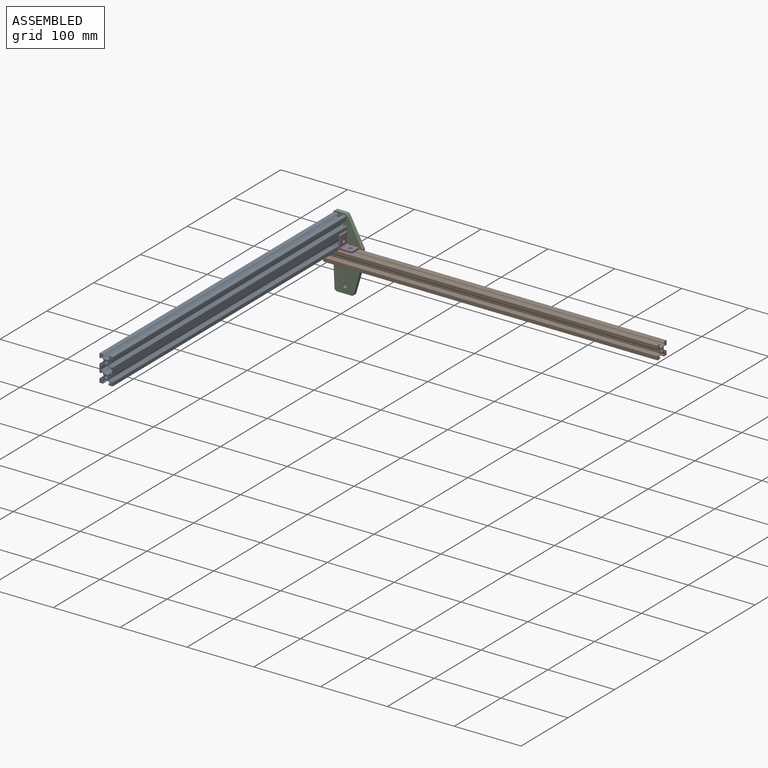
[diagram: assembled view]
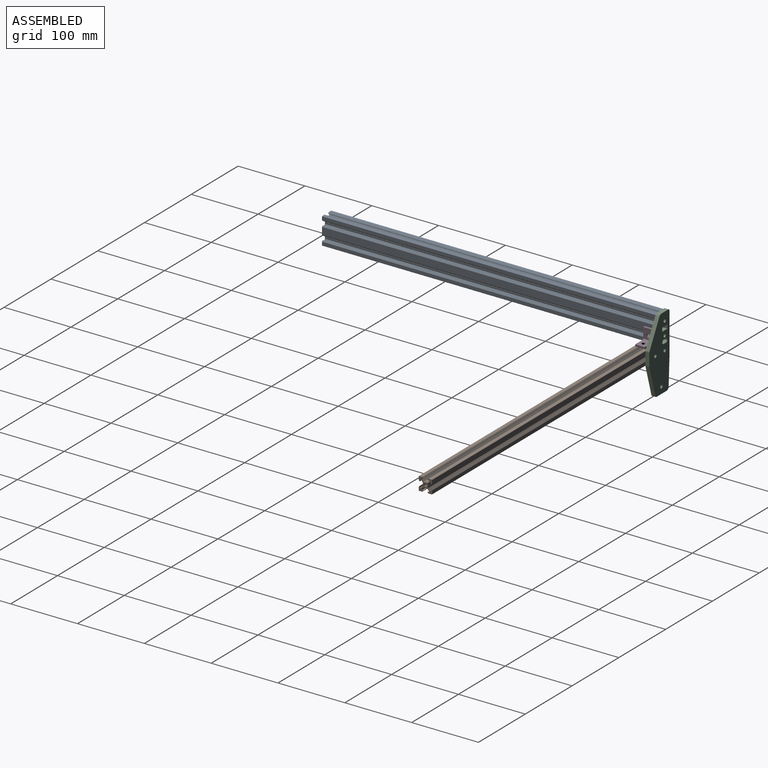
[diagram: assembled view, second angle]
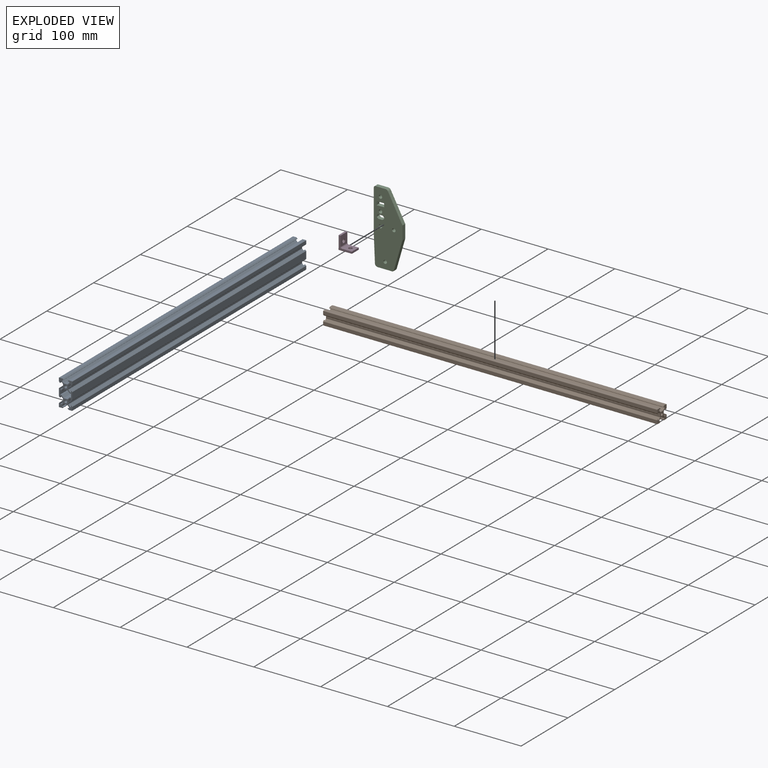
[diagram: exploded view]
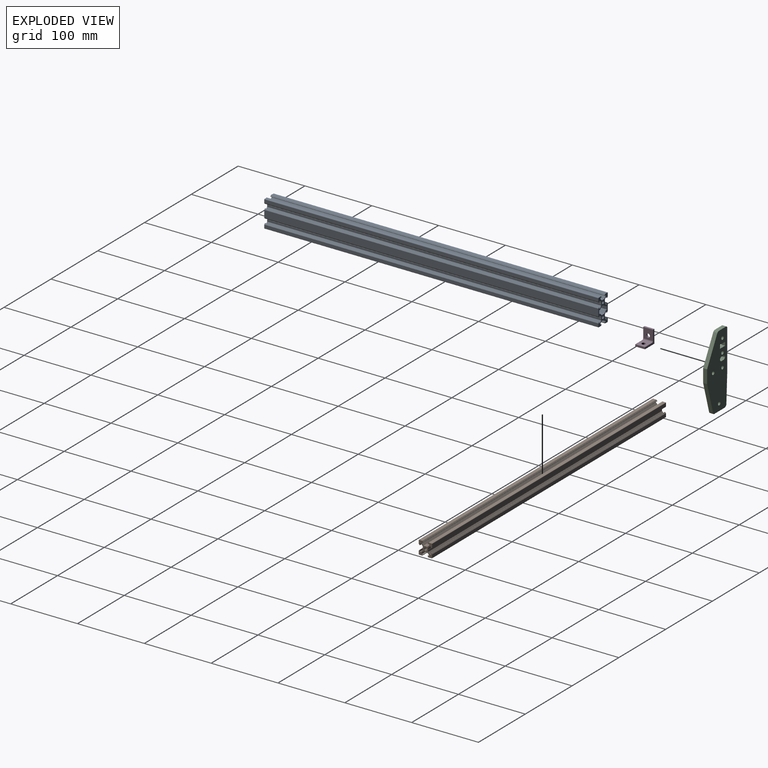
[diagram: exploded view, second angle]
ASSEMBLY  parts=4 mates=4
PART A: 114 faces, bbox 20x500x40 mm
  f0: cylinder r=2.1mm len=500mm, axis (0,1,0), area 6597.3mm2, adj f112,f113
  f1: cylinder r=2.1mm len=500mm, axis (0,1,0), area 6597.3mm2, adj f112,f113
  f2: plane 500x0.21mm, normal (0.71,0,0.71), area 148.5mm2, adj f3,f110,f112,f113
  f3: plane 500x0.21mm, normal (0.71,0,-0.71), area 148.5mm2, adj f2,f4,f112,f113
  f4: plane 500x2.63mm, normal (1,0,0), area 1314.7mm2, adj f3,f5,f112,f113
  f5: plane 500x2.66mm, normal (0.71,0,-0.71), area 1881.4mm2, adj f4,f6,f112,f113
  f6: plane 500x1.64mm, normal (0,0,-1), area 819.7mm2, adj f5,f7,f112,f113
  f7: plane 500x2.38mm, normal (-1,0,0), area 1187.5mm2, adj f6,f8,f112,f113
  f8: plane 500x0.35mm, normal (0,0,-1), area 172.5mm2, adj f7,f9,f112,f113
  f9: plane 500x1.46mm, normal (0.71,0,-0.71), area 1028.8mm2, adj f8,f10,f112,f113
  f10: plane 500x4.92mm, normal (1,0,0), area 2460mm2, adj f9,f11,f112,f113
  f11: cylinder r=0.5mm len=500mm, axis (0,1,0), area 392.7mm2, adj f10,f12,f112,f113
  f12: plane 500x4.92mm, normal (0,0,1), area 2460mm2, adj f11,f13,f112,f113
  f13: plane 500x1.46mm, normal (-0.71,0,0.71), area 1028.8mm2, adj f12,f14,f112,f113
  f14: plane 500x0.35mm, normal (-1,0,0), area 172.5mm2, adj f13,f15,f112,f113
  f15: plane 500x2.38mm, normal (0,0,-1), area 1187.5mm2, adj f14,f16,f112,f113
  f16: plane 500x1.64mm, normal (-1,0,0), area 819.7mm2, adj f15,f17,f112,f113
  f17: plane 500x2.66mm, normal (-0.71,0,0.71), area 1881.4mm2, adj f16,f18,f112,f113
  f18: plane 500x2.63mm, normal (0,0,1), area 1314.7mm2, adj f17,f19,f112,f113
  f19: plane 500x0.21mm, normal (-0.71,0,0.71), area 148.5mm2, adj f18,f20,f112,f113
  f20: plane 500x0.21mm, normal (0.71,0,0.71), area 148.5mm2, adj f19,f21,f112,f113
  f21: plane 500x2.63mm, normal (0,0,1), area 1314.7mm2, adj f20,f22,f112,f113
  f22: plane 500x2.66mm, normal (0.71,0,0.71), area 1881.4mm2, adj f21,f23,f112,f113
  f23: plane 500x1.64mm, normal (1,0,0), area 819.7mm2, adj f22,f24,f112,f113
  f24: plane 500x2.38mm, normal (0,0,-1), area 1187.5mm2, adj f23,f25,f112,f113
  f25: plane 500x0.35mm, normal (1,0,0), area 172.5mm2, adj f24,f26,f112,f113
  f26: plane 500x1.46mm, normal (0.71,0,0.71), area 1028.8mm2, adj f25,f27,f112,f113
  f27: plane 500x4.92mm, normal (0,0,1), area 2460mm2, adj f26,f28,f112,f113
  f28: cylinder r=0.5mm len=500mm, axis (0,1,0), area 392.7mm2, adj f27,f29,f112,f113
  f29: plane 500x4.92mm, normal (-1,0,0), area 2460mm2, adj f28,f30,f112,f113
  f30: plane 500x1.46mm, normal (-0.71,0,-0.71), area 1028.8mm2, adj f29,f31,f112,f113
  f31: plane 500x0.35mm, normal (0,0,-1), area 172.5mm2, adj f30,f32,f112,f113
  f32: plane 500x2.38mm, normal (1,0,0), area 1187.5mm2, adj f31,f33,f112,f113
  f33: plane 500x1.64mm, normal (0,0,-1), area 819.7mm2, adj f32,f34,f112,f113
  f34: plane 500x2.66mm, normal (-0.71,0,-0.71), area 1881.4mm2, adj f33,f35,f112,f113
  f35: plane 500x2.63mm, normal (-1,0,0), area 1314.7mm2, adj f34,f36,f112,f113
  f36: plane 500x0.21mm, normal (-0.71,0,-0.71), area 148.5mm2, adj f35,f37,f112,f113
  f37: plane 500x0.21mm, normal (-0.71,0,0.71), area 148.5mm2, adj f36,f38,f112,f113
  f38: plane 500x2.63mm, normal (-1,0,0), area 1314.7mm2, adj f37,f39,f112,f113
  f39: plane 500x2.66mm, normal (-0.71,0,0.71), area 1881.4mm2, adj f38,f40,f112,f113
  f40: plane 500x1.64mm, normal (0,0,1), area 819.7mm2, adj f39,f41,f112,f113
  f41: plane 500x2.38mm, normal (1,0,0), area 1187.5mm2, adj f40,f42,f112,f113
  f42: plane 500x0.35mm, normal (0,0,1), area 172.5mm2, adj f41,f43,f112,f113
  f43: plane 500x1.46mm, normal (-0.71,0,0.71), area 1028.8mm2, adj f42,f44,f112,f113
  f44: plane 500x10.84mm, normal (-1,0,0), area 5420mm2, adj f43,f45,f112,f113
  f45: plane 500x1.46mm, normal (-0.71,0,-0.71), area 1028.8mm2, adj f44,f46,f112,f113
  f46: plane 500x0.35mm, normal (0,0,-1), area 172.5mm2, adj f45,f47,f112,f113
  f47: plane 500x2.38mm, normal (1,0,0), area 1187.5mm2, adj f46,f48,f112,f113
  f48: plane 500x1.64mm, normal (0,0,-1), area 819.7mm2, adj f47,f49,f112,f113
  f49: plane 500x2.66mm, normal (-0.71,0,-0.71), area 1881.4mm2, adj f48,f50,f112,f113
  f50: plane 500x2.63mm, normal (-1,0,0), area 1314.7mm2, adj f49,f51,f112,f113
  f51: plane 500x0.21mm, normal (-0.71,0,-0.71), area 148.5mm2, adj f50,f52,f112,f113
  f52: plane 500x0.21mm, normal (-0.71,0,0.71), area 148.5mm2, adj f51,f53,f112,f113
  f53: plane 500x2.63mm, normal (-1,0,0), area 1314.7mm2, adj f52,f54,f112,f113
  f54: plane 500x2.66mm, normal (-0.71,0,0.71), area 1881.4mm2, adj f53,f55,f112,f113
  f55: plane 500x1.64mm, normal (0,0,1), area 819.7mm2, adj f54,f56,f112,f113
  f56: plane 500x2.38mm, normal (1,0,0), area 1187.5mm2, adj f55,f57,f112,f113
  f57: plane 500x0.35mm, normal (0,0,1), area 172.5mm2, adj f56,f58,f112,f113
  f58: plane 500x1.46mm, normal (-0.71,0,0.71), area 1028.8mm2, adj f57,f59,f112,f113
  f59: plane 500x4.92mm, normal (-1,0,0), area 2460mm2, adj f58,f60,f112,f113
  f60: cylinder r=0.5mm len=500mm, axis (0,1,0), area 392.7mm2, adj f59,f61,f112,f113
  f61: plane 500x4.92mm, normal (0,0,-1), area 2460mm2, adj f60,f62,f112,f113
  f62: plane 500x1.46mm, normal (0.71,0,-0.71), area 1028.8mm2, adj f61,f63,f112,f113
  f63: plane 500x0.35mm, normal (1,0,0), area 172.5mm2, adj f62,f64,f112,f113
  f64: plane 500x2.38mm, normal (0,0,1), area 1187.5mm2, adj f63,f65,f112,f113
  f65: plane 500x1.64mm, normal (1,0,0), area 819.7mm2, adj f64,f66,f112,f113
  f66: plane 500x2.66mm, normal (0.71,0,-0.71), area 1881.4mm2, adj f65,f67,f112,f113
  f67: plane 500x2.63mm, normal (0,0,-1), area 1314.7mm2, adj f66,f68,f112,f113
  f68: plane 500x0.21mm, normal (0.71,0,-0.71), area 148.5mm2, adj f67,f69,f112,f113
  f69: plane 500x0.21mm, normal (-0.71,0,-0.71), area 148.5mm2, adj f68,f70,f112,f113
  f70: plane 500x2.63mm, normal (0,0,-1), area 1314.7mm2, adj f69,f71,f112,f113
  f71: plane 500x2.66mm, normal (-0.71,0,-0.71), area 1881.4mm2, adj f70,f72,f112,f113
  f72: plane 500x1.64mm, normal (-1,0,0), area 819.7mm2, adj f71,f73,f112,f113
  f73: plane 500x2.38mm, normal (0,0,1), area 1187.5mm2, adj f72,f74,f112,f113
  f74: plane 500x0.35mm, normal (-1,0,0), area 172.5mm2, adj f73,f75,f112,f113
  f75: plane 500x1.46mm, normal (-0.71,0,-0.71), area 1028.8mm2, adj f74,f76,f112,f113
  f76: plane 500x4.92mm, normal (0,0,-1), area 2460mm2, adj f75,f77,f112,f113
  f77: cylinder r=0.5mm len=500mm, axis (0,1,0), area 392.7mm2, adj f76,f78,f112,f113
  f78: plane 500x4.92mm, normal (1,0,0), area 2460mm2, adj f77,f79,f112,f113
  f79: plane 500x1.46mm, normal (0.71,0,0.71), area 1028.8mm2, adj f78,f80,f112,f113
  f80: plane 500x0.35mm, normal (0,0,1), area 172.5mm2, adj f79,f81,f112,f113
  f81: plane 500x2.38mm, normal (-1,0,0), area 1187.5mm2, adj f80,f82,f112,f113
  f82: plane 500x1.64mm, normal (0,0,1), area 819.7mm2, adj f81,f83,f112,f113
  f83: plane 500x2.66mm, normal (0.71,0,0.71), area 1881.4mm2, adj f82,f84,f112,f113
  f84: plane 500x2.63mm, normal (1,0,0), area 1314.7mm2, adj f83,f85,f112,f113
  f85: plane 500x0.21mm, normal (0.71,0,0.71), area 148.5mm2, adj f84,f86,f112,f113
  f86: plane 500x0.21mm, normal (0.71,0,-0.71), area 148.5mm2, adj f85,f87,f112,f113
  f87: plane 500x2.63mm, normal (1,0,0), area 1314.7mm2, adj f86,f88,f112,f113
  f88: plane 500x2.66mm, normal (0.71,0,-0.71), area 1881.4mm2, adj f87,f89,f112,f113
  f89: plane 500x1.64mm, normal (0,0,-1), area 819.7mm2, adj f88,f90,f112,f113
  f90: plane 500x2.38mm, normal (-1,0,0), area 1187.5mm2, adj f89,f91,f112,f113
  f91: plane 500x0.35mm, normal (0,0,-1), area 172.5mm2, adj f90,f92,f112,f113
  f92: plane 500x1.46mm, normal (0.71,0,-0.71), area 1028.8mm2, adj f91,f93,f112,f113
  f93: plane 500x10.84mm, normal (1,0,0), area 5420mm2, adj f92,f94,f112,f113
  f94: plane 500x1.46mm, normal (0.71,0,0.71), area 1028.8mm2, adj f93,f95,f112,f113
  f95: plane 500x0.35mm, normal (0,0,1), area 172.5mm2, adj f94,f96,f112,f113
  f96: plane 500x2.38mm, normal (-1,0,0), area 1187.5mm2, adj f95,f97,f112,f113
  f97: plane 500x1.64mm, normal (0,0,1), area 819.7mm2, adj f96,f98,f112,f113
  f98: plane 500x2.66mm, normal (0.71,0,0.71), area 1881.4mm2, adj f97,f110,f112,f113
  f99: plane 500x1.96mm, normal (0,0,1), area 980.3mm2, adj f100,f111,f112,f113
  f100: plane 500x5.4mm, normal (1,0,0), area 2700mm2, adj f99,f101,f112,f113
  f101: plane 500x1.96mm, normal (0,0,-1), area 980.3mm2, adj f100,f102,f112,f113
  f102: plane 500x3.4mm, normal (0.71,0,-0.71), area 2404.2mm2, adj f101,f103,f112,f113
  f103: plane 500x5.68mm, normal (0,0,-1), area 2839.3mm2, adj f102,f104,f112,f113
  f104: plane 500x3.4mm, normal (-0.71,0,-0.71), area 2404.2mm2, adj f103,f105,f112,f113
  f105: plane 500x1.96mm, normal (0,0,-1), area 980.3mm2, adj f104,f106,f112,f113
  f106: plane 500x5.4mm, normal (-1,0,0), area 2700mm2, adj f105,f107,f112,f113
  f107: plane 500x1.96mm, normal (0,0,1), area 980.3mm2, adj f106,f108,f112,f113
  f108: plane 500x3.4mm, normal (-0.71,0,0.71), area 2404.2mm2, adj f107,f109,f112,f113
  f109: plane 500x5.68mm, normal (0,0,1), area 2839.3mm2, adj f108,f111,f112,f113
  f110: plane 500x2.63mm, normal (1,0,0), area 1314.7mm2, adj f2,f98,f112,f113
  f111: plane 500x3.4mm, normal (0.71,0,0.71), area 2404.2mm2, adj f99,f109,f112,f113
  f112: plane 40x20mm, normal (0,-1,0), area 300mm2, adj f0,f1,f2,f3,f4,f5,f6,f7
  f113: plane 40x20mm, normal (0,1,0), area 300mm2, adj f0,f1,f2,f3,f4,f5,f6,f7
PART B: 71 faces, bbox 20x500x20 mm
  f0: cylinder r=2.1mm len=500mm, axis (0,1,0), area 6597.3mm2, adj f69,f70
  f1: plane 500x0.21mm, normal (0.71,0,0.71), area 148.5mm2, adj f2,f68,f69,f70
  f2: plane 500x0.21mm, normal (0.71,0,-0.71), area 148.5mm2, adj f1,f3,f69,f70
  f3: plane 500x2.63mm, normal (1,0,0), area 1314.7mm2, adj f2,f4,f69,f70
  f4: plane 500x2.66mm, normal (0.71,0,-0.71), area 1881.4mm2, adj f3,f5,f69,f70
  f5: plane 500x1.64mm, normal (0,0,-1), area 819.7mm2, adj f4,f6,f69,f70
  f6: plane 500x2.38mm, normal (-1,0,0), area 1187.5mm2, adj f5,f7,f69,f70
  f7: plane 500x0.35mm, normal (0,0,-1), area 172.5mm2, adj f6,f8,f69,f70
  f8: plane 500x1.46mm, normal (0.71,0,-0.71), area 1028.8mm2, adj f7,f9,f69,f70
  f9: plane 500x4.92mm, normal (1,0,0), area 2460mm2, adj f8,f10,f69,f70
  f10: cylinder r=0.5mm len=500mm, axis (0,1,0), area 392.7mm2, adj f9,f11,f69,f70
  f11: plane 500x4.92mm, normal (0,0,1), area 2460mm2, adj f10,f12,f69,f70
  f12: plane 500x1.46mm, normal (-0.71,0,0.71), area 1028.8mm2, adj f11,f13,f69,f70
  f13: plane 500x0.35mm, normal (-1,0,0), area 172.5mm2, adj f12,f14,f69,f70
  f14: plane 500x2.38mm, normal (0,0,-1), area 1187.5mm2, adj f13,f15,f69,f70
  f15: plane 500x1.64mm, normal (-1,0,0), area 819.7mm2, adj f14,f16,f69,f70
  f16: plane 500x2.66mm, normal (-0.71,0,0.71), area 1881.4mm2, adj f15,f17,f69,f70
  f17: plane 500x2.63mm, normal (0,0,1), area 1314.7mm2, adj f16,f18,f69,f70
  f18: plane 500x0.21mm, normal (-0.71,0,0.71), area 148.5mm2, adj f17,f19,f69,f70
  f19: plane 500x0.21mm, normal (0.71,0,0.71), area 148.5mm2, adj f18,f20,f69,f70
  f20: plane 500x2.63mm, normal (0,0,1), area 1314.7mm2, adj f19,f21,f69,f70
  f21: plane 500x2.66mm, normal (0.71,0,0.71), area 1881.4mm2, adj f20,f22,f69,f70
  f22: plane 500x1.64mm, normal (1,0,0), area 819.7mm2, adj f21,f23,f69,f70
  f23: plane 500x2.38mm, normal (0,0,-1), area 1187.5mm2, adj f22,f24,f69,f70
  f24: plane 500x0.35mm, normal (1,0,0), area 172.5mm2, adj f23,f25,f69,f70
  f25: plane 500x1.46mm, normal (0.71,0,0.71), area 1028.8mm2, adj f24,f26,f69,f70
  f26: plane 500x4.92mm, normal (0,0,1), area 2460mm2, adj f25,f27,f69,f70
  f27: cylinder r=0.5mm len=500mm, axis (0,1,0), area 392.7mm2, adj f26,f28,f69,f70
  f28: plane 500x4.92mm, normal (-1,0,0), area 2460mm2, adj f27,f29,f69,f70
  f29: plane 500x1.46mm, normal (-0.71,0,-0.71), area 1028.8mm2, adj f28,f30,f69,f70
  f30: plane 500x0.35mm, normal (0,0,-1), area 172.5mm2, adj f29,f31,f69,f70
  f31: plane 500x2.38mm, normal (1,0,0), area 1187.5mm2, adj f30,f32,f69,f70
  f32: plane 500x1.64mm, normal (0,0,-1), area 819.7mm2, adj f31,f33,f69,f70
  f33: plane 500x2.66mm, normal (-0.71,0,-0.71), area 1881.4mm2, adj f32,f34,f69,f70
  f34: plane 500x2.63mm, normal (-1,0,0), area 1314.7mm2, adj f33,f35,f69,f70
  f35: plane 500x0.21mm, normal (-0.71,0,-0.71), area 148.5mm2, adj f34,f36,f69,f70
  f36: plane 500x0.21mm, normal (-0.71,0,0.71), area 148.5mm2, adj f35,f37,f69,f70
  f37: plane 500x2.63mm, normal (-1,0,0), area 1314.7mm2, adj f36,f38,f69,f70
  f38: plane 500x2.66mm, normal (-0.71,0,0.71), area 1881.4mm2, adj f37,f39,f69,f70
  f39: plane 500x1.64mm, normal (0,0,1), area 819.7mm2, adj f38,f40,f69,f70
  f40: plane 500x2.38mm, normal (1,0,0), area 1187.5mm2, adj f39,f41,f69,f70
  f41: plane 500x0.35mm, normal (0,0,1), area 172.5mm2, adj f40,f42,f69,f70
  f42: plane 500x1.46mm, normal (-0.71,0,0.71), area 1028.8mm2, adj f41,f43,f69,f70
  f43: plane 500x4.92mm, normal (-1,0,0), area 2460mm2, adj f42,f44,f69,f70
  f44: cylinder r=0.5mm len=500mm, axis (0,1,0), area 392.7mm2, adj f43,f45,f69,f70
  f45: plane 500x4.92mm, normal (0,0,-1), area 2460mm2, adj f44,f46,f69,f70
  f46: plane 500x1.46mm, normal (0.71,0,-0.71), area 1028.8mm2, adj f45,f47,f69,f70
  f47: plane 500x0.35mm, normal (1,0,0), area 172.5mm2, adj f46,f48,f69,f70
  f48: plane 500x2.38mm, normal (0,0,1), area 1187.5mm2, adj f47,f49,f69,f70
  f49: plane 500x1.64mm, normal (1,0,0), area 819.7mm2, adj f48,f50,f69,f70
  f50: plane 500x2.66mm, normal (0.71,0,-0.71), area 1881.4mm2, adj f49,f51,f69,f70
  f51: plane 500x2.63mm, normal (0,0,-1), area 1314.7mm2, adj f50,f52,f69,f70
  f52: plane 500x0.21mm, normal (0.71,0,-0.71), area 148.5mm2, adj f51,f53,f69,f70
  f53: plane 500x0.21mm, normal (-0.71,0,-0.71), area 148.5mm2, adj f52,f54,f69,f70
  f54: plane 500x2.63mm, normal (0,0,-1), area 1314.7mm2, adj f53,f55,f69,f70
  f55: plane 500x2.66mm, normal (-0.71,0,-0.71), area 1881.4mm2, adj f54,f56,f69,f70
  f56: plane 500x1.64mm, normal (-1,0,0), area 819.7mm2, adj f55,f57,f69,f70
  f57: plane 500x2.38mm, normal (0,0,1), area 1187.5mm2, adj f56,f58,f69,f70
  f58: plane 500x0.35mm, normal (-1,0,0), area 172.5mm2, adj f57,f59,f69,f70
  f59: plane 500x1.46mm, normal (-0.71,0,-0.71), area 1028.8mm2, adj f58,f60,f69,f70
  f60: plane 500x4.92mm, normal (0,0,-1), area 2460mm2, adj f59,f61,f69,f70
  f61: cylinder r=0.5mm len=500mm, axis (0,1,0), area 392.7mm2, adj f60,f62,f69,f70
  f62: plane 500x4.92mm, normal (1,0,0), area 2460mm2, adj f61,f63,f69,f70
  f63: plane 500x1.46mm, normal (0.71,0,0.71), area 1028.8mm2, adj f62,f64,f69,f70
  f64: plane 500x0.35mm, normal (0,0,1), area 172.5mm2, adj f63,f65,f69,f70
  f65: plane 500x2.38mm, normal (-1,0,0), area 1187.5mm2, adj f64,f66,f69,f70
  f66: plane 500x1.64mm, normal (0,0,1), area 819.7mm2, adj f65,f67,f69,f70
  f67: plane 500x2.66mm, normal (0.71,0,0.71), area 1881.4mm2, adj f66,f68,f69,f70
  f68: plane 500x2.63mm, normal (1,0,0), area 1314.7mm2, adj f1,f67,f69,f70
  f69: plane 20x20mm, normal (0,-1,0), area 171.4mm2, adj f0,f1,f2,f3,f4,f5,f6,f7
  f70: plane 20x20mm, normal (0,1,0), area 171.4mm2, adj f0,f1,f2,f3,f4,f5,f6,f7
PART C: 184 faces, bbox 43x6x108.7 mm
  f0: plane 6x5.4mm, normal (1,0,0), area 32.4mm2, adj f1,f181,f182,f183
  f1: plane 11x6mm, normal (0,0,-1), area 66mm2, adj f0,f2,f182,f183
  f2: plane 6x5.4mm, normal (-1,0,0), area 32.4mm2, adj f1,f181,f182,f183
  f3: plane 7.01x6mm, normal (0,0,-1), area 42.1mm2, adj f4,f174,f182,f183
  f4: plane 6x2mm, normal (-0.71,0,-0.71), area 16.9mm2, adj f3,f5,f182,f183
  f5: plane 6x1.98mm, normal (-1,0,0), area 11.9mm2, adj f4,f6,f182,f183
  f6: plane 6x2.38mm, normal (-0.64,0,0.76), area 18.6mm2, adj f5,f7,f182,f183
  f7: plane 6.25x6mm, normal (0,0,1), area 37.5mm2, adj f6,f8,f182,f183
  f8: plane 6x2.38mm, normal (0.64,0,0.76), area 18.6mm2, adj f7,f9,f182,f183
  f9: plane 6x1.98mm, normal (1,0,0), area 11.9mm2, adj f8,f174,f182,f183
  f10: plane 6x0.67mm, normal (0.13,0,0.99), area 4.1mm2, adj f11,f175,f182,f183
  f11: plane 6x0.63mm, normal (0.38,0,0.92), area 4.1mm2, adj f10,f12,f182,f183
  f12: plane 6x0.54mm, normal (0.61,0,0.79), area 4.1mm2, adj f11,f13,f182,f183
  f13: plane 6x0.54mm, normal (0.79,0,0.61), area 4.1mm2, adj f12,f14,f182,f183
  f14: plane 6x0.63mm, normal (0.92,0,0.38), area 4.1mm2, adj f13,f15,f182,f183
  f15: plane 6x0.67mm, normal (0.99,0,0.13), area 4.1mm2, adj f14,f16,f182,f183
  f16: plane 6x0.67mm, normal (0.99,0,-0.13), area 4.1mm2, adj f15,f17,f182,f183
  f17: plane 6x0.63mm, normal (0.92,0,-0.38), area 4.1mm2, adj f16,f18,f182,f183
  f18: plane 6x0.54mm, normal (0.79,0,-0.61), area 4.1mm2, adj f17,f19,f182,f183
  f19: plane 6x0.54mm, normal (0.61,0,-0.79), area 4.1mm2, adj f18,f20,f182,f183
  f20: plane 6x0.63mm, normal (0.38,0,-0.92), area 4.1mm2, adj f19,f21,f182,f183
  f21: plane 6x0.67mm, normal (0.13,0,-0.99), area 4.1mm2, adj f20,f22,f182,f183
  f22: plane 6x0.67mm, normal (-0.13,0,-0.99), area 4.1mm2, adj f21,f23,f182,f183
  f23: plane 6x0.63mm, normal (-0.38,0,-0.92), area 4.1mm2, adj f22,f24,f182,f183
  f24: plane 6x0.54mm, normal (-0.61,0,-0.79), area 4.1mm2, adj f23,f25,f182,f183
  f25: plane 6x0.54mm, normal (-0.79,0,-0.61), area 4.1mm2, adj f24,f26,f182,f183
  f26: plane 6x0.63mm, normal (-0.92,0,-0.38), area 4.1mm2, adj f25,f27,f182,f183
  f27: plane 6x0.67mm, normal (-0.99,0,-0.13), area 4.1mm2, adj f26,f28,f182,f183
  f28: plane 6x0.67mm, normal (-0.99,0,0.13), area 4.1mm2, adj f27,f29,f182,f183
  f29: plane 6x0.63mm, normal (-0.92,0,0.38), area 4.1mm2, adj f28,f30,f182,f183
  f30: plane 6x0.54mm, normal (-0.79,0,0.61), area 4.1mm2, adj f29,f31,f182,f183
  f31: plane 6x0.54mm, normal (-0.61,0,0.79), area 4.1mm2, adj f30,f32,f182,f183
  f32: plane 6x0.63mm, normal (-0.38,0,0.92), area 4.1mm2, adj f31,f175,f182,f183
  f33: plane 6x0.54mm, normal (-0.61,0,-0.79), area 4.1mm2, adj f34,f176,f182,f183
  f34: plane 6x0.54mm, normal (-0.79,0,-0.61), area 4.1mm2, adj f33,f35,f182,f183
  f35: plane 6x0.63mm, normal (-0.92,0,-0.38), area 4.1mm2, adj f34,f36,f182,f183
  f36: plane 6x0.67mm, normal (-0.99,0,-0.13), area 4.1mm2, adj f35,f37,f182,f183
  f37: plane 6x0.67mm, normal (-0.99,0,0.13), area 4.1mm2, adj f36,f38,f182,f183
  f38: plane 6x0.63mm, normal (-0.92,0,0.38), area 4.1mm2, adj f37,f39,f182,f183
  f39: plane 6x0.54mm, normal (-0.79,0,0.61), area 4.1mm2, adj f38,f40,f182,f183
  f40: plane 6x0.54mm, normal (-0.61,0,0.79), area 4.1mm2, adj f39,f41,f182,f183
  f41: plane 6x0.63mm, normal (-0.38,0,0.92), area 4.1mm2, adj f40,f42,f182,f183
  f42: plane 6x0.67mm, normal (-0.13,0,0.99), area 4.1mm2, adj f41,f43,f182,f183
  f43: plane 6x0.67mm, normal (0.13,0,0.99), area 4.1mm2, adj f42,f44,f182,f183
  f44: plane 6x0.63mm, normal (0.38,0,0.92), area 4.1mm2, adj f43,f45,f182,f183
  f45: plane 6x0.54mm, normal (0.61,0,0.79), area 4.1mm2, adj f44,f46,f182,f183
  f46: plane 6x0.54mm, normal (0.79,0,0.61), area 4.1mm2, adj f45,f47,f182,f183
  f47: plane 6x0.63mm, normal (0.92,0,0.38), area 4.1mm2, adj f46,f48,f182,f183
  f48: plane 6x0.67mm, normal (0.99,0,0.13), area 4.1mm2, adj f47,f49,f182,f183
  f49: plane 6x0.67mm, normal (0.99,0,-0.13), area 4.1mm2, adj f48,f50,f182,f183
  f50: plane 6x0.63mm, normal (0.92,0,-0.38), area 4.1mm2, adj f49,f51,f182,f183
  f51: plane 6x0.54mm, normal (0.79,0,-0.61), area 4.1mm2, adj f50,f52,f182,f183
  f52: plane 6x0.54mm, normal (0.61,0,-0.79), area 4.1mm2, adj f51,f53,f182,f183
  f53: plane 6x0.63mm, normal (0.38,0,-0.92), area 4.1mm2, adj f52,f54,f182,f183
  f54: plane 6x0.67mm, normal (0.13,0,-0.99), area 4.1mm2, adj f53,f55,f182,f183
  f55: plane 6x0.67mm, normal (-0.13,0,-0.99), area 4.1mm2, adj f54,f176,f182,f183
  f56: plane 6x0.54mm, normal (-0.61,0,0.79), area 4.1mm2, adj f57,f177,f182,f183
  f57: plane 6x0.63mm, normal (-0.38,0,0.92), area 4.1mm2, adj f56,f58,f182,f183
  f58: plane 6x0.67mm, normal (-0.13,0,0.99), area 4.1mm2, adj f57,f59,f182,f183
  f59: plane 6x0.67mm, normal (0.13,0,0.99), area 4.1mm2, adj f58,f60,f182,f183
  f60: plane 6x0.63mm, normal (0.38,0,0.92), area 4.1mm2, adj f59,f61,f182,f183
  f61: plane 6x0.54mm, normal (0.61,0,0.79), area 4.1mm2, adj f60,f62,f182,f183
  f62: plane 6x0.54mm, normal (0.79,0,0.61), area 4.1mm2, adj f61,f63,f182,f183
  f63: plane 6x0.63mm, normal (0.92,0,0.38), area 4.1mm2, adj f62,f64,f182,f183
  f64: plane 6x0.67mm, normal (0.99,0,0.13), area 4.1mm2, adj f63,f65,f182,f183
  f65: plane 6x0.67mm, normal (0.99,0,-0.13), area 4.1mm2, adj f64,f66,f182,f183
  f66: plane 6x0.63mm, normal (0.92,0,-0.38), area 4.1mm2, adj f65,f67,f182,f183
  f67: plane 6x0.54mm, normal (0.79,0,-0.61), area 4.1mm2, adj f66,f68,f182,f183
  f68: plane 6x0.54mm, normal (0.61,0,-0.79), area 4.1mm2, adj f67,f69,f182,f183
  f69: plane 6x0.63mm, normal (0.38,0,-0.92), area 4.1mm2, adj f68,f70,f182,f183
  f70: plane 6x0.67mm, normal (0.13,0,-0.99), area 4.1mm2, adj f69,f71,f182,f183
  f71: plane 6x0.67mm, normal (-0.13,0,-0.99), area 4.1mm2, adj f70,f72,f182,f183
  f72: plane 6x0.63mm, normal (-0.38,0,-0.92), area 4.1mm2, adj f71,f73,f182,f183
  f73: plane 6x0.54mm, normal (-0.61,0,-0.79), area 4.1mm2, adj f72,f74,f182,f183
  f74: plane 6x0.54mm, normal (-0.79,0,-0.61), area 4.1mm2, adj f73,f75,f182,f183
  f75: plane 6x0.63mm, normal (-0.92,0,-0.38), area 4.1mm2, adj f74,f76,f182,f183
  f76: plane 6x0.67mm, normal (-0.99,0,-0.13), area 4.1mm2, adj f75,f77,f182,f183
  f77: plane 6x0.67mm, normal (-0.99,0,0.13), area 4.1mm2, adj f76,f78,f182,f183
  f78: plane 6x0.63mm, normal (-0.92,0,0.38), area 4.1mm2, adj f77,f177,f182,f183
  f79: plane 6x0.63mm, normal (-0.92,0,-0.38), area 4.1mm2, adj f80,f178,f182,f183
  f80: plane 6x0.67mm, normal (-0.99,0,-0.13), area 4.1mm2, adj f79,f81,f182,f183
  f81: plane 6x0.67mm, normal (-0.99,0,0.13), area 4.1mm2, adj f80,f82,f182,f183
  f82: plane 6x0.63mm, normal (-0.92,0,0.38), area 4.1mm2, adj f81,f83,f182,f183
  f83: plane 6x0.54mm, normal (-0.79,0,0.61), area 4.1mm2, adj f82,f84,f182,f183
  f84: plane 6x0.54mm, normal (-0.61,0,0.79), area 4.1mm2, adj f83,f85,f182,f183
  f85: plane 6x0.63mm, normal (-0.38,0,0.92), area 4.1mm2, adj f84,f86,f182,f183
  f86: plane 6x0.67mm, normal (-0.13,0,0.99), area 4.1mm2, adj f85,f87,f182,f183
  f87: plane 6x0.67mm, normal (0.13,0,0.99), area 4.1mm2, adj f86,f88,f182,f183
  f88: plane 6x0.63mm, normal (0.38,0,0.92), area 4.1mm2, adj f87,f89,f182,f183
  f89: plane 6x0.54mm, normal (0.61,0,0.79), area 4.1mm2, adj f88,f90,f182,f183
  f90: plane 6x0.54mm, normal (0.79,0,0.61), area 4.1mm2, adj f89,f91,f182,f183
  f91: plane 6x0.63mm, normal (0.92,0,0.38), area 4.1mm2, adj f90,f92,f182,f183
  f92: plane 6x0.67mm, normal (0.99,0,0.13), area 4.1mm2, adj f91,f93,f182,f183
  f93: plane 6x0.67mm, normal (0.99,0,-0.13), area 4.1mm2, adj f92,f94,f182,f183
  f94: plane 6x0.63mm, normal (0.92,0,-0.38), area 4.1mm2, adj f93,f95,f182,f183
  f95: plane 6x0.54mm, normal (0.79,0,-0.61), area 4.1mm2, adj f94,f96,f182,f183
  f96: plane 6x0.54mm, normal (0.61,0,-0.79), area 4.1mm2, adj f95,f97,f182,f183
  f97: plane 6x0.63mm, normal (0.38,0,-0.92), area 4.1mm2, adj f96,f98,f182,f183
  f98: plane 6x0.67mm, normal (0.13,0,-0.99), area 4.1mm2, adj f97,f99,f182,f183
  f99: plane 6x0.67mm, normal (-0.13,0,-0.99), area 4.1mm2, adj f98,f100,f182,f183
  f100: plane 6x0.63mm, normal (-0.38,0,-0.92), area 4.1mm2, adj f99,f101,f182,f183
  f101: plane 6x0.54mm, normal (-0.61,0,-0.79), area 4.1mm2, adj f100,f178,f182,f183
  f102: plane 6x0.63mm, normal (-0.92,0,-0.38), area 4.1mm2, adj f103,f179,f182,f183
  f103: plane 6x0.67mm, normal (-0.99,0,-0.13), area 4.1mm2, adj f102,f104,f182,f183
  f104: plane 6x0.67mm, normal (-0.99,0,0.13), area 4.1mm2, adj f103,f105,f182,f183
  f105: plane 6x0.63mm, normal (-0.92,0,0.38), area 4.1mm2, adj f104,f106,f182,f183
  f106: plane 6x0.54mm, normal (-0.79,0,0.61), area 4.1mm2, adj f105,f107,f182,f183
  f107: plane 6x0.54mm, normal (-0.61,0,0.79), area 4.1mm2, adj f106,f108,f182,f183
  f108: plane 6x0.63mm, normal (-0.38,0,0.92), area 4.1mm2, adj f107,f109,f182,f183
  f109: plane 6x0.67mm, normal (-0.13,0,0.99), area 4.1mm2, adj f108,f110,f182,f183
  f110: plane 6x0.67mm, normal (0.13,0,0.99), area 4.1mm2, adj f109,f111,f182,f183
  f111: plane 6x0.63mm, normal (0.38,0,0.92), area 4.1mm2, adj f110,f112,f182,f183
  f112: plane 6x0.54mm, normal (0.61,0,0.79), area 4.1mm2, adj f111,f113,f182,f183
  f113: plane 6x0.54mm, normal (0.79,0,0.61), area 4.1mm2, adj f112,f114,f182,f183
  f114: plane 6x0.63mm, normal (0.92,0,0.38), area 4.1mm2, adj f113,f115,f182,f183
  f115: plane 6x0.67mm, normal (0.99,0,0.13), area 4.1mm2, adj f114,f116,f182,f183
  f116: plane 6x0.67mm, normal (0.99,0,-0.13), area 4.1mm2, adj f115,f117,f182,f183
  f117: plane 6x0.63mm, normal (0.92,0,-0.38), area 4.1mm2, adj f116,f118,f182,f183
  f118: plane 6x0.54mm, normal (0.79,0,-0.61), area 4.1mm2, adj f117,f119,f182,f183
  f119: plane 6x0.54mm, normal (0.61,0,-0.79), area 4.1mm2, adj f118,f120,f182,f183
  f120: plane 6x0.63mm, normal (0.38,0,-0.92), area 4.1mm2, adj f119,f121,f182,f183
  f121: plane 6x0.67mm, normal (0.13,0,-0.99), area 4.1mm2, adj f120,f122,f182,f183
  f122: plane 6x0.67mm, normal (-0.13,0,-0.99), area 4.1mm2, adj f121,f123,f182,f183
  f123: plane 6x0.63mm, normal (-0.38,0,-0.92), area 4.1mm2, adj f122,f124,f182,f183
  f124: plane 6x0.54mm, normal (-0.61,0,-0.79), area 4.1mm2, adj f123,f179,f182,f183
  f125: plane 6x0.18mm, normal (-0.95,0,0.32), area 1.1mm2, adj f126,f180,f182,f183
  f126: plane 6x0.77mm, normal (-0.96,0,0.27), area 4.8mm2, adj f125,f127,f182,f183
  f127: plane 6x0.35mm, normal (-1,0,0.06), area 2.1mm2, adj f126,f128,f182,f183
  f128: plane 59.63x6mm, normal (-1,0,0), area 357.8mm2, adj f127,f129,f182,f183
  f129: plane 43.59x6mm, normal (-1,0,-0.04), area 261.8mm2, adj f128,f130,f182,f183
  f130: plane 6x0.74mm, normal (-0.8,0,-0.6), area 5.5mm2, adj f129,f131,f182,f183
  f131: plane 6x0.33mm, normal (-0.72,0,-0.7), area 2.8mm2, adj f130,f132,f182,f183
  f132: plane 6x0.35mm, normal (-0.66,0,-0.75), area 2.8mm2, adj f131,f133,f182,f183
  f133: plane 6x0.37mm, normal (-0.59,0,-0.81), area 2.8mm2, adj f132,f134,f182,f183
  f134: plane 6x0.39mm, normal (-0.52,0,-0.85), area 2.8mm2, adj f133,f135,f182,f183
  f135: plane 6x0.41mm, normal (-0.45,0,-0.89), area 2.8mm2, adj f134,f136,f182,f183
  f136: plane 6x0.43mm, normal (-0.37,0,-0.93), area 2.8mm2, adj f135,f137,f182,f183
  f137: plane 6x0.44mm, normal (-0.29,0,-0.96), area 2.8mm2, adj f136,f138,f182,f183
  f138: plane 6x0.45mm, normal (-0.21,0,-0.98), area 2.8mm2, adj f137,f139,f182,f183
  f139: plane 6x0.92mm, normal (-0.08,0,-1), area 5.5mm2, adj f138,f140,f182,f183
  f140: plane 21.07x6mm, normal (0,0,-1), area 126.4mm2, adj f139,f141,f182,f183
  f141: plane 6x0.65mm, normal (0.12,0,-0.99), area 3.9mm2, adj f140,f142,f182,f183
  f142: plane 6x0.31mm, normal (0.3,0,-0.95), area 2mm2, adj f141,f143,f182,f183
  f143: plane 6x0.3mm, normal (0.41,0,-0.91), area 2mm2, adj f142,f144,f182,f183
  f144: plane 6x0.28mm, normal (0.52,0,-0.86), area 2mm2, adj f143,f145,f182,f183
  f145: plane 6x0.26mm, normal (0.62,0,-0.79), area 2mm2, adj f144,f146,f182,f183
  f146: plane 6x0.23mm, normal (0.71,0,-0.71), area 2mm2, adj f145,f147,f182,f183
  f147: plane 6x0.26mm, normal (0.79,0,-0.62), area 2mm2, adj f146,f148,f182,f183
  f148: plane 6x0.28mm, normal (0.85,0,-0.52), area 2mm2, adj f147,f149,f182,f183
  f149: plane 6x0.3mm, normal (0.91,0,-0.41), area 2mm2, adj f148,f150,f182,f183
  f150: plane 6x0.63mm, normal (0.97,0,-0.24), area 3.9mm2, adj f149,f151,f182,f183
  f151: plane 43.79x12.7mm, normal (0.96,0,-0.28), area 273.6mm2, adj f150,f152,f182,f183
  f152: plane 20x6mm, normal (1,0,0), area 120mm2, adj f151,f153,f182,f183
  f153: plane 40.19x21.57mm, normal (0.88,0,0.47), area 273.7mm2, adj f152,f154,f182,f183
  f154: plane 6x0.34mm, normal (0.82,0,0.57), area 2.5mm2, adj f153,f155,f182,f183
  f155: plane 6x0.32mm, normal (0.77,0,0.63), area 2.5mm2, adj f154,f156,f182,f183
  f156: plane 6x0.3mm, normal (0.72,0,0.7), area 2.5mm2, adj f155,f157,f182,f183
  f157: plane 6x0.31mm, normal (0.66,0,0.75), area 2.5mm2, adj f156,f158,f182,f183
  f158: plane 6x0.33mm, normal (0.59,0,0.81), area 2.5mm2, adj f157,f159,f182,f183
  f159: plane 6x0.35mm, normal (0.52,0,0.85), area 2.5mm2, adj f158,f160,f182,f183
  f160: plane 6x0.37mm, normal (0.45,0,0.89), area 2.5mm2, adj f159,f161,f182,f183
  f161: plane 6x0.38mm, normal (0.37,0,0.93), area 2.5mm2, adj f160,f162,f182,f183
  f162: plane 6x0.39mm, normal (0.29,0,0.96), area 2.5mm2, adj f161,f163,f182,f183
  f163: plane 6x0.4mm, normal (0.21,0,0.98), area 2.5mm2, adj f162,f164,f182,f183
  f164: plane 6x0.41mm, normal (0.13,0,0.99), area 2.5mm2, adj f163,f165,f182,f183
  f165: plane 6x0.41mm, normal (0.04,0,1), area 2.5mm2, adj f164,f166,f182,f183
  f166: plane 14.67x6mm, normal (0,0,1), area 88mm2, adj f165,f167,f182,f183
  f167: plane 6x0.35mm, normal (-0.15,0,0.99), area 2.1mm2, adj f166,f168,f182,f183
  f168: plane 6x0.34mm, normal (-0.27,0,0.96), area 2.1mm2, adj f167,f169,f182,f183
  f169: plane 6x0.33mm, normal (-0.38,0,0.92), area 2.1mm2, adj f168,f170,f182,f183
  f170: plane 6x0.31mm, normal (-0.5,0,0.87), area 2.1mm2, adj f169,f171,f182,f183
  f171: plane 6x0.28mm, normal (-0.6,0,0.8), area 2.1mm2, adj f170,f172,f182,f183
  f172: plane 6x0.26mm, normal (-0.69,0,0.72), area 2.1mm2, adj f171,f173,f182,f183
  f173: plane 6x0.28mm, normal (-0.78,0,0.63), area 2.1mm2, adj f172,f180,f182,f183
  f174: plane 6x2mm, normal (0.71,0,-0.71), area 16.9mm2, adj f3,f9,f182,f183
  f175: plane 6x0.67mm, normal (-0.13,0,0.99), area 4.1mm2, adj f10,f32,f182,f183
  f176: plane 6x0.63mm, normal (-0.38,0,-0.92), area 4.1mm2, adj f33,f55,f182,f183
  f177: plane 6x0.54mm, normal (-0.79,0,0.61), area 4.1mm2, adj f56,f78,f182,f183
  f178: plane 6x0.54mm, normal (-0.79,0,-0.61), area 4.1mm2, adj f79,f101,f182,f183
  f179: plane 6x0.54mm, normal (-0.79,0,-0.61), area 4.1mm2, adj f102,f124,f182,f183
  f180: plane 6x0.36mm, normal (-0.84,0,0.55), area 2.6mm2, adj f125,f173,f182,f183
  f181: plane 11x6mm, normal (0,0,1), area 66mm2, adj f0,f2,f182,f183
  f182: plane 108.65x43mm, normal (0,-1,0), area 3603.8mm2, adj f0,f1,f2,f3,f4,f5,f6,f7
  f183: plane 108.65x43mm, normal (0,1,0), area 3603.8mm2, adj f0,f1,f2,f3,f4,f5,f6,f7
PART D: 14 faces, bbox 19.9x14.6x20 mm
  f0: plane 2.92x0.02mm, normal (0,0,-1), area 0.1mm2, adj f2,f3,f5,f8
  f1: plane 17.05x4.92mm, normal (0,-1,0), area 50.7mm2, adj f2,f4,f5,f9,f13
  f2: plane 19.94x14.61mm, normal (1,0,0), area 196.1mm2, adj f0,f1,f3,f4,f8,f11,f13
  f3: plane 19.94x2.92mm, normal (0,1,0), area 58.2mm2, adj f0,f2,f4,f5
  f4: plane 14.61x2.92mm, normal (0,0,1), area 42.7mm2, adj f1,f2,f3,f5
  f5: plane 19.97x14.63mm, normal (-1,0,0), area 268mm2, adj f0,f1,f3,f4,f7,f8,f9,f10
  f6: plane 14.61x2.92mm, normal (1,0,0), area 42.7mm2, adj f7,f8,f9,f10
  f7: plane 19.94x2.92mm, normal (0,-1,0), area 58.2mm2, adj f5,f6,f9,f10
  f8: plane 19.94x4.92mm, normal (0,1,0), area 50.7mm2, adj f0,f2,f5,f6,f9,f10,f13
  f9: plane 19.94x14.61mm, normal (0,0,1), area 195.7mm2, adj f1,f5,f6,f7,f8,f12,f13
  f10: plane 19.94x14.61mm, normal (0,0,-1), area 267.5mm2, adj f5,f6,f7,f8,f12
  f11: cylinder r=2.75mm len=5.5mm, axis (-1,0,0), area 50.5mm2, adj f2,f5
  f12: cylinder r=2.75mm len=5.5mm, axis (0,0,-1), area 50.5mm2, adj f9,f10
  f13: cylinder r=2mm len=14.58mm, axis (0,1,0), area 45.8mm2, adj f1,f2,f8,f9
PLACE A rot(axis=(0,0,1),180deg) t=(-173.92,-739.01,-132.51)mm
PLACE B rot(axis=(0.71,0.71,0),180deg) t=(314.92,-249.01,-162.51)mm
PLACE C rot(axis=(-0.14,0.01,-0.99),0deg) t=(-305.15,-233.01,-163)mm fixed
PLACE D t=(-173.92,-235.47,-142.01)mm
MATE planar B.f45 <-> A.f61  axis (0,0,1) through (64.92,-256.05,-152.51)mm
MATE fastened A.f0 <-> C.f182  axis (0,-1,0) through (-173.92,-239.01,-122.51)mm
MATE planar B.f9 <-> C.f182  axis (0,1,0) through (64.92,-239.01,-169.55)mm
MATE planar D.f5 <-> A.f59  axis (-1,0,0) through (-163.92,-249.01,-152.01)mm
